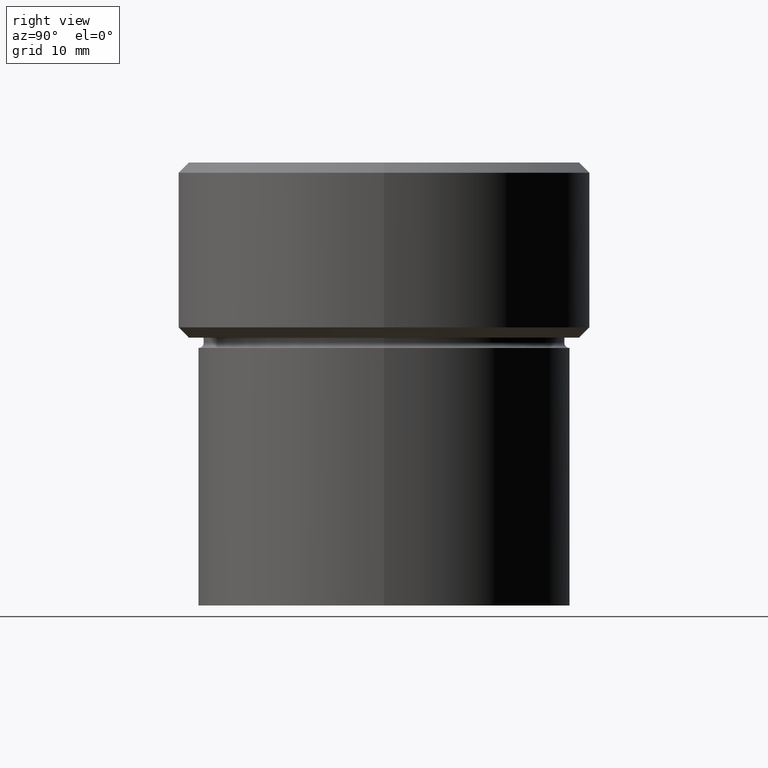
[diagram: clean part render]
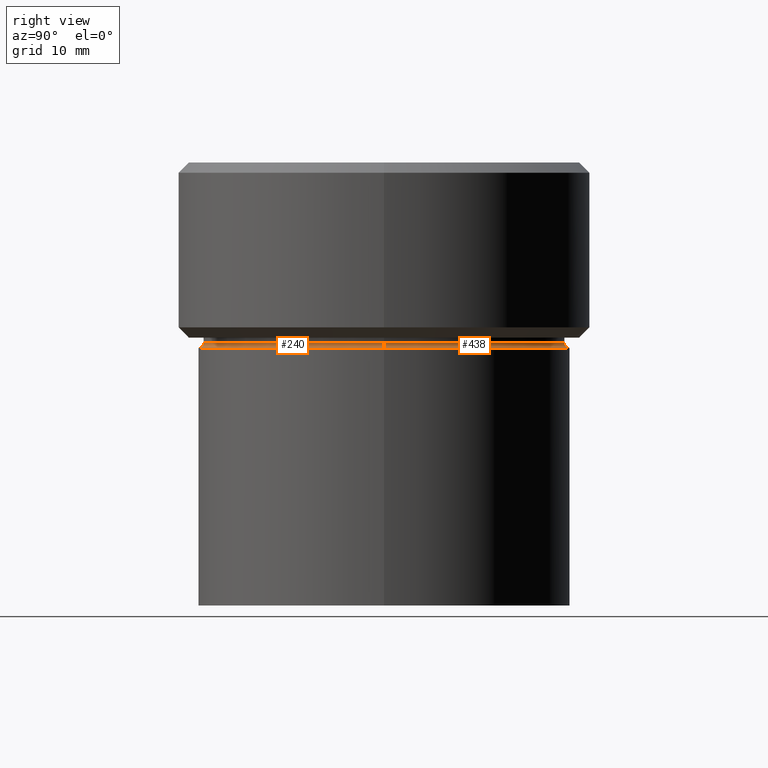
[diagram: same view with one multi-face feature highlighted, each face labeled with its STEP entity id]
A machine part, right view. The highlighted faces form ONE feature: a constant-radius fillet chain: 2 tangent blend faces with common blend radius 0.5 mm. The faces share edges in the B-rep.
Their STEP definitions:
[1] entity #438 (Torus):
#1 = CIRCLE ( 'NONE', #422, 18.00000000000000000 ) ;
#5 = CARTESIAN_POINT ( 'NONE',  ( 17.49999999999999645, 0.000000000000000000, -17.49999999999999645 ) ) ;
#7 = EDGE_CURVE ( 'NONE', #368, #102, #327, .T. ) ;
#8 = ORIENTED_EDGE ( 'NONE', *, *, #419, .F. ) ;
#16 = AXIS2_PLACEMENT_3D ( 'NONE', #69, #200, #402 ) ;
#43 = VERTEX_POINT ( 'NONE', #219 ) ;
#59 = DIRECTION ( 'NONE',  ( 1.224646799147353207E-16, 1.000000000000000000, 0.000000000000000000 ) ) ;
#69 = CARTESIAN_POINT ( 'NONE',  ( 18.00000000000000000, 0.000000000000000000, -17.49999999999999645 ) ) ;
#102 = VERTEX_POINT ( 'NONE', #530 ) ;
#124 = DIRECTION ( 'NONE',  ( -0.000000000000000000, -0.000000000000000000, 1.000000000000000000 ) ) ;
#136 = ORIENTED_EDGE ( 'NONE', *, *, #205, .T. ) ;
#146 = CARTESIAN_POINT ( 'NONE',  ( -18.00000000000000000, 2.204364238465235428E-15, -17.49999999999999645 ) ) ;
#147 = EDGE_LOOP ( 'NONE', ( #8, #341, #184, #136 ) ) ;
#160 = VERTEX_POINT ( 'NONE', #211 ) ;
#184 = ORIENTED_EDGE ( 'NONE', *, *, #7, .T. ) ;
#185 = DIRECTION ( 'NONE',  ( -0.000000000000000000, -0.000000000000000000, 1.000000000000000000 ) ) ;
#194 = DIRECTION ( 'NONE',  ( -1.000000000000000000, 1.224646799147349509E-16, 0.000000000000000000 ) ) ;
#200 = DIRECTION ( 'NONE',  ( 0.000000000000000000, -1.000000000000000000, 0.000000000000000000 ) ) ;
#205 = EDGE_CURVE ( 'NONE', #102, #43, #1, .T. ) ;
#211 = CARTESIAN_POINT ( 'NONE',  ( -17.49999999999999645, 2.143131898507867854E-15, -17.49999999999999645 ) ) ;
#219 = CARTESIAN_POINT ( 'NONE',  ( -18.00000000000000000, 2.204364238465235428E-15, -18.00000000000000000 ) ) ;
#244 = CIRCLE ( 'NONE', #512, 0.5000000000000004441 ) ;
#245 = TOROIDAL_SURFACE ( 'NONE', #407, 18.00000000000000000, 0.5000000000000000000 ) ;
#297 = CIRCLE ( 'NONE', #312, 17.49999999999999645 ) ;
#311 = DIRECTION ( 'NONE',  ( -0.000000000000000000, -0.000000000000000000, 1.000000000000000000 ) ) ;
#312 = AXIS2_PLACEMENT_3D ( 'NONE', #496, #311, #491 ) ;
#327 = CIRCLE ( 'NONE', #16, 0.5000000000000004441 ) ;
#337 = EDGE_CURVE ( 'NONE', #368, #160, #297, .T. ) ;
#341 = ORIENTED_EDGE ( 'NONE', *, *, #337, .F. ) ;
#368 = VERTEX_POINT ( 'NONE', #5 ) ;
#392 = CARTESIAN_POINT ( 'NONE',  ( 0.000000000000000000, 0.000000000000000000, -18.00000000000000000 ) ) ;
#402 = DIRECTION ( 'NONE',  ( 0.000000000000000000, 0.000000000000000000, -1.000000000000000000 ) ) ;
#407 = AXIS2_PLACEMENT_3D ( 'NONE', #521, #124, #529 ) ;
#414 = FACE_OUTER_BOUND ( 'NONE', #147, .T. ) ;
#419 = EDGE_CURVE ( 'NONE', #160, #43, #244, .T. ) ;
#422 = AXIS2_PLACEMENT_3D ( 'NONE', #392, #185, #423 ) ;
#423 = DIRECTION ( 'NONE',  ( 1.000000000000000000, 0.000000000000000000, 0.000000000000000000 ) ) ;
#438 = ADVANCED_FACE ( 'NONE', ( #414 ), #245, .F. ) ;
#491 = DIRECTION ( 'NONE',  ( 1.000000000000000000, 0.000000000000000000, 0.000000000000000000 ) ) ;
#496 = CARTESIAN_POINT ( 'NONE',  ( 0.000000000000000000, 0.000000000000000000, -17.49999999999999645 ) ) ;
#512 = AXIS2_PLACEMENT_3D ( 'NONE', #146, #59, #194 ) ;
#521 = CARTESIAN_POINT ( 'NONE',  ( 0.000000000000000000, 0.000000000000000000, -17.49999999999999645 ) ) ;
#529 = DIRECTION ( 'NONE',  ( 1.000000000000000000, 0.000000000000000000, 0.000000000000000000 ) ) ;
#530 = CARTESIAN_POINT ( 'NONE',  ( 18.00000000000000000, 0.000000000000000000, -18.00000000000000000 ) ) ;
[2] entity #240 (Torus):
#5 = CARTESIAN_POINT ( 'NONE',  ( 17.49999999999999645, 0.000000000000000000, -17.49999999999999645 ) ) ;
#7 = EDGE_CURVE ( 'NONE', #368, #102, #327, .T. ) ;
#16 = AXIS2_PLACEMENT_3D ( 'NONE', #69, #200, #402 ) ;
#18 = CIRCLE ( 'NONE', #497, 17.49999999999999645 ) ;
#43 = VERTEX_POINT ( 'NONE', #219 ) ;
#47 = CIRCLE ( 'NONE', #472, 18.00000000000000000 ) ;
#53 = EDGE_CURVE ( 'NONE', #43, #102, #47, .T. ) ;
#59 = DIRECTION ( 'NONE',  ( 1.224646799147353207E-16, 1.000000000000000000, 0.000000000000000000 ) ) ;
#68 = EDGE_CURVE ( 'NONE', #160, #368, #18, .T. ) ;
#69 = CARTESIAN_POINT ( 'NONE',  ( 18.00000000000000000, 0.000000000000000000, -17.49999999999999645 ) ) ;
#101 = FACE_OUTER_BOUND ( 'NONE', #296, .T. ) ;
#102 = VERTEX_POINT ( 'NONE', #530 ) ;
#146 = CARTESIAN_POINT ( 'NONE',  ( -18.00000000000000000, 2.204364238465235428E-15, -17.49999999999999645 ) ) ;
#159 = AXIS2_PLACEMENT_3D ( 'NONE', #494, #304, #177 ) ;
#160 = VERTEX_POINT ( 'NONE', #211 ) ;
#163 = ORIENTED_EDGE ( 'NONE', *, *, #419, .T. ) ;
#177 = DIRECTION ( 'NONE',  ( 1.000000000000000000, 0.000000000000000000, 0.000000000000000000 ) ) ;
#187 = TOROIDAL_SURFACE ( 'NONE', #159, 18.00000000000000000, 0.5000000000000000000 ) ;
#194 = DIRECTION ( 'NONE',  ( -1.000000000000000000, 1.224646799147349509E-16, 0.000000000000000000 ) ) ;
#200 = DIRECTION ( 'NONE',  ( 0.000000000000000000, -1.000000000000000000, 0.000000000000000000 ) ) ;
#211 = CARTESIAN_POINT ( 'NONE',  ( -17.49999999999999645, 2.143131898507867854E-15, -17.49999999999999645 ) ) ;
#216 = CARTESIAN_POINT ( 'NONE',  ( 0.000000000000000000, 0.000000000000000000, -17.49999999999999645 ) ) ;
#219 = CARTESIAN_POINT ( 'NONE',  ( -18.00000000000000000, 2.204364238465235428E-15, -18.00000000000000000 ) ) ;
#226 = ORIENTED_EDGE ( 'NONE', *, *, #53, .T. ) ;
#240 = ADVANCED_FACE ( 'NONE', ( #101 ), #187, .F. ) ;
#243 = ORIENTED_EDGE ( 'NONE', *, *, #7, .F. ) ;
#244 = CIRCLE ( 'NONE', #512, 0.5000000000000004441 ) ;
#265 = CARTESIAN_POINT ( 'NONE',  ( 0.000000000000000000, 0.000000000000000000, -18.00000000000000000 ) ) ;
#296 = EDGE_LOOP ( 'NONE', ( #452, #163, #226, #243 ) ) ;
#304 = DIRECTION ( 'NONE',  ( -0.000000000000000000, -0.000000000000000000, 1.000000000000000000 ) ) ;
#327 = CIRCLE ( 'NONE', #16, 0.5000000000000004441 ) ;
#336 = DIRECTION ( 'NONE',  ( -0.000000000000000000, -0.000000000000000000, 1.000000000000000000 ) ) ;
#368 = VERTEX_POINT ( 'NONE', #5 ) ;
#381 = DIRECTION ( 'NONE',  ( -0.000000000000000000, -0.000000000000000000, 1.000000000000000000 ) ) ;
#384 = DIRECTION ( 'NONE',  ( 1.000000000000000000, 0.000000000000000000, 0.000000000000000000 ) ) ;
#402 = DIRECTION ( 'NONE',  ( 0.000000000000000000, 0.000000000000000000, -1.000000000000000000 ) ) ;
#419 = EDGE_CURVE ( 'NONE', #160, #43, #244, .T. ) ;
#452 = ORIENTED_EDGE ( 'NONE', *, *, #68, .F. ) ;
#472 = AXIS2_PLACEMENT_3D ( 'NONE', #265, #381, #492 ) ;
#492 = DIRECTION ( 'NONE',  ( 1.000000000000000000, 0.000000000000000000, 0.000000000000000000 ) ) ;
#494 = CARTESIAN_POINT ( 'NONE',  ( 0.000000000000000000, 0.000000000000000000, -17.49999999999999645 ) ) ;
#497 = AXIS2_PLACEMENT_3D ( 'NONE', #216, #336, #384 ) ;
#512 = AXIS2_PLACEMENT_3D ( 'NONE', #146, #59, #194 ) ;
#530 = CARTESIAN_POINT ( 'NONE',  ( 18.00000000000000000, 0.000000000000000000, -18.00000000000000000 ) ) ;